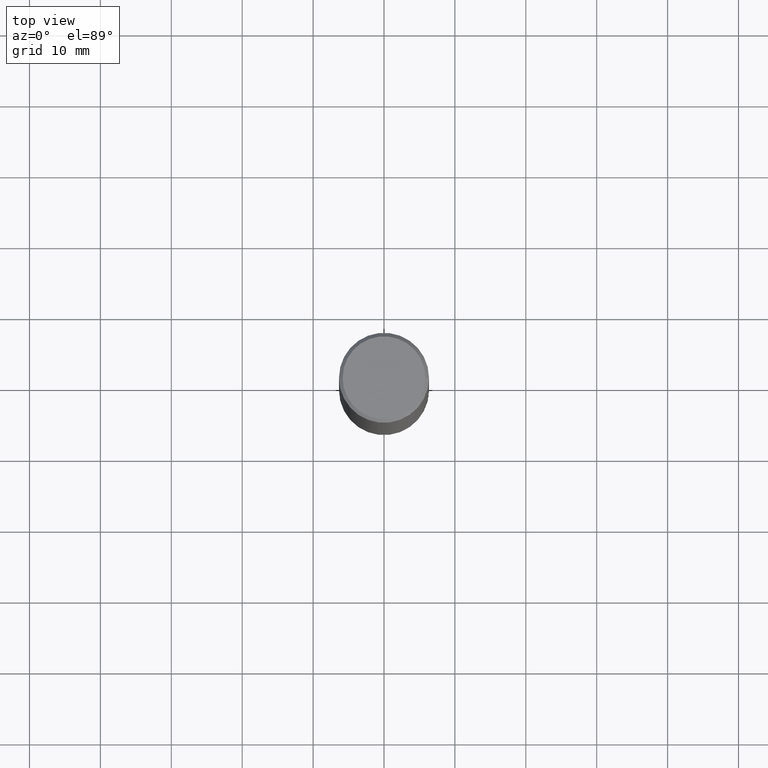
[diagram: clean part render]
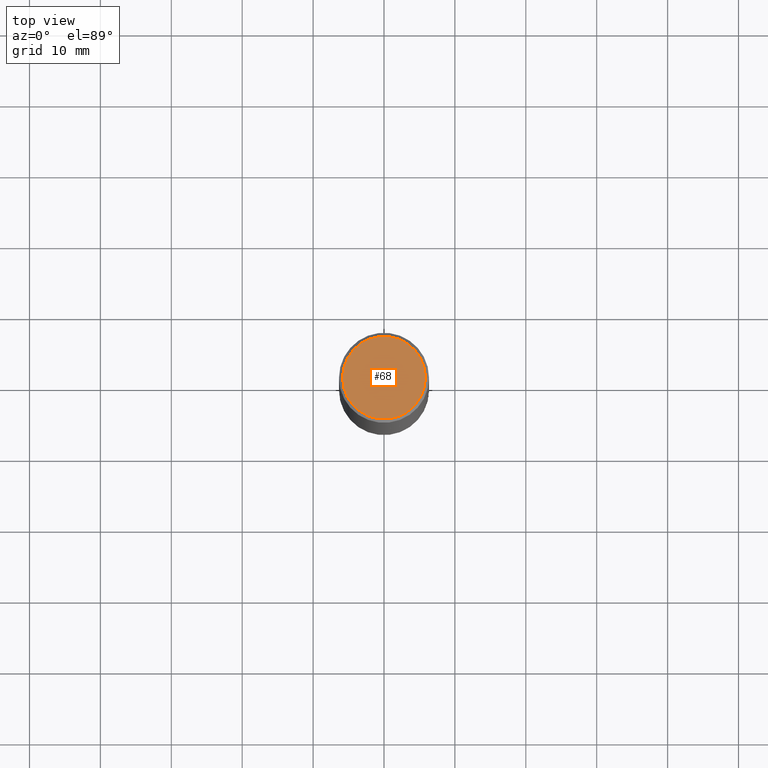
[diagram: same view with one face highlighted and labeled with its STEP entity id]
A machine part, top view. The second image highlights one B-rep face of the part: STEP entity #68.
In plain terms, the highlighted planar face has unit normal (0, -0, -1).
Its self-contained STEP definition (entity closure, byte-faithful):
#19 = CARTESIAN_POINT ( 'NONE',  ( 0.000000000000000000, 0.000000000000000000, 0.000000000000000000 ) ) ;
#31 = CIRCLE ( 'NONE', #392, 0.2299999999999997324 ) ;
#58 = DIRECTION ( 'NONE',  ( 1.000000000000000000, -6.982962677686266711E-15, 4.876176775795935793E-29 ) ) ;
#66 = FACE_OUTER_BOUND ( 'NONE', #378, .T. ) ;
#68 = ADVANCED_FACE ( 'NONE', ( #66 ), #77, .F. ) ;
#77 = PLANE ( 'NONE',  #272 ) ;
#130 = ORIENTED_EDGE ( 'NONE', *, *, #271, .T. ) ;
#138 = AXIS2_PLACEMENT_3D ( 'NONE', #19, #402, #294 ) ;
#199 = VERTEX_POINT ( 'NONE', #403 ) ;
#249 = DIRECTION ( 'NONE',  ( -2.445468806185136597E-29, 3.491481338843145583E-15, 1.000000000000000000 ) ) ;
#271 = EDGE_CURVE ( 'NONE', #309, #199, #336, .T. ) ;
#272 = AXIS2_PLACEMENT_3D ( 'NONE', #380, #287, #383 ) ;
#287 = DIRECTION ( 'NONE',  ( 2.438088387897960049E-29, -3.491481338843145188E-15, -1.000000000000000000 ) ) ;
#294 = DIRECTION ( 'NONE',  ( 1.000000000000000000, -6.982962677686266711E-15, 4.876176775795935793E-29 ) ) ;
#303 = ORIENTED_EDGE ( 'NONE', *, *, #371, .T. ) ;
#309 = VERTEX_POINT ( 'NONE', #435 ) ;
#324 = CARTESIAN_POINT ( 'NONE',  ( 0.000000000000000000, 0.000000000000000000, 0.000000000000000000 ) ) ;
#336 = CIRCLE ( 'NONE', #138, 0.2299999999999997324 ) ;
#371 = EDGE_CURVE ( 'NONE', #199, #309, #31, .T. ) ;
#378 = EDGE_LOOP ( 'NONE', ( #130, #303 ) ) ;
#380 = CARTESIAN_POINT ( 'NONE',  ( 1.606081415867839292E-15, 0.2299999999999997324, -8.030407079339226044E-16 ) ) ;
#383 = DIRECTION ( 'NONE',  ( -1.000000000000000000, 6.982962677686265922E-15, -4.876176775795935793E-29 ) ) ;
#392 = AXIS2_PLACEMENT_3D ( 'NONE', #324, #249, #58 ) ;
#402 = DIRECTION ( 'NONE',  ( -2.445468806185136597E-29, 3.491481338843145583E-15, 1.000000000000000000 ) ) ;
#403 = CARTESIAN_POINT ( 'NONE',  ( 0.2299999999999997324, -1.681434332853597236E-15, 1.149527484987431679E-29 ) ) ;
#435 = CARTESIAN_POINT ( 'NONE',  ( -0.2299999999999997324, 1.640996229256270744E-15, -1.135408596578604579E-29 ) ) ;